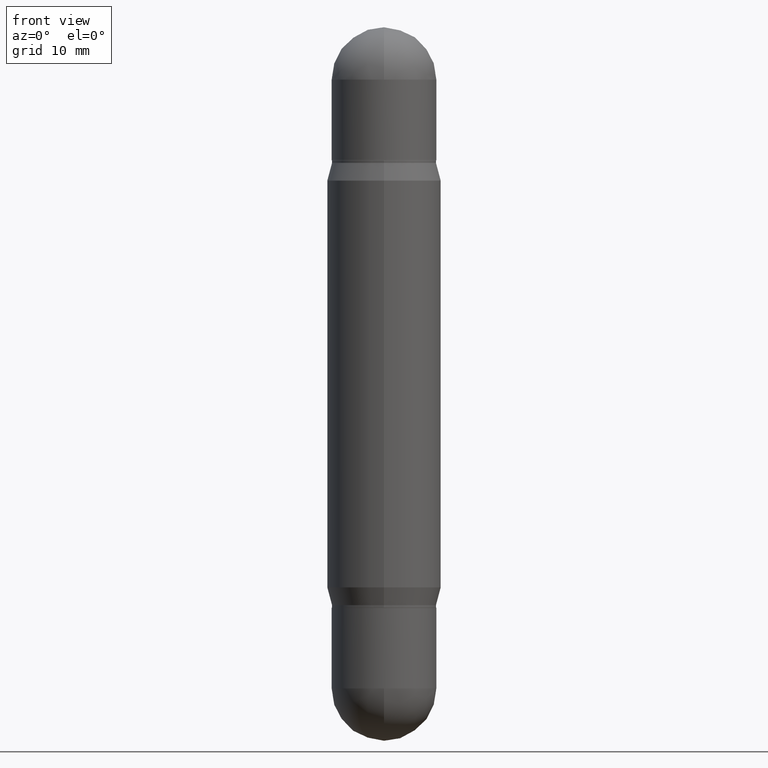
[diagram: clean part render]
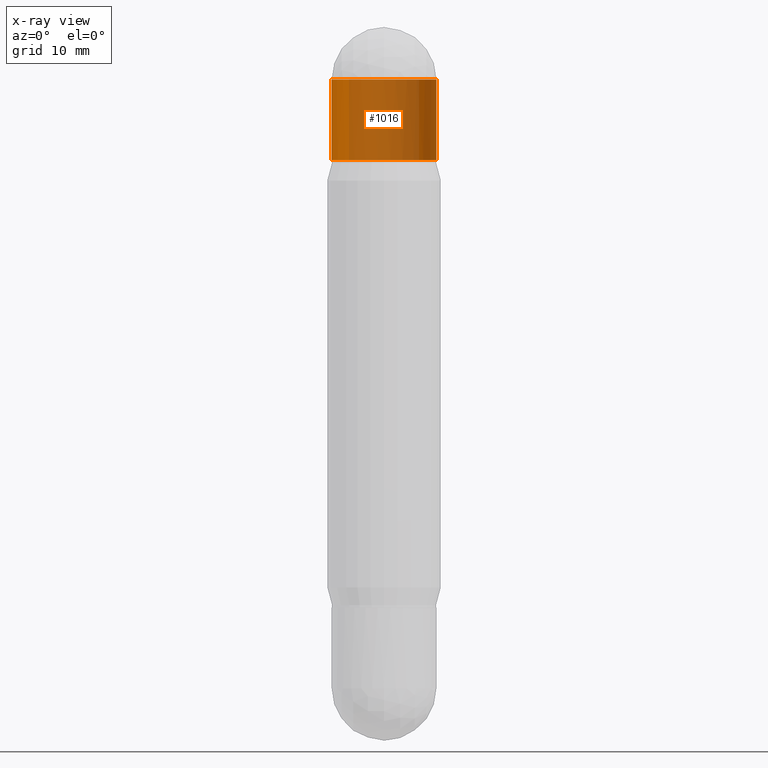
[diagram: x-ray — body ghosted, one internal face saturated and labeled with its STEP entity id]
A machine part, front view, then the same camera in x-ray: the body is ghosted and one INTERNAL B-rep face — a face not visible from any outside direction — is saturated and labeled: STEP entity #1016.
In plain terms, the highlighted cylindrical surface (partial cylindrical patch) has radius 5.5004 mm, axis along (-0, -0, -1).
Its self-contained STEP definition (entity closure, byte-faithful):
#64 = DIRECTION ( 'NONE',  ( -2.445468806185136877E-29, -3.479614466977828648E-15, -1.000000000000000000 ) ) ;
#98 = AXIS2_PLACEMENT_3D ( 'NONE', #621, #951, #774 ) ;
#107 = EDGE_CURVE ( 'NONE', #128, #830, #599, .T. ) ;
#115 = AXIS2_PLACEMENT_3D ( 'NONE', #148, #581, #235 ) ;
#128 = VERTEX_POINT ( 'NONE', #446 ) ;
#148 = CARTESIAN_POINT ( 'NONE',  ( 6.691414020924079206E-29, -7.710307624460063053E-16, -0.2165500000000001868 ) ) ;
#167 = DIRECTION ( 'NONE',  ( 1.000000000000000000, -6.982962677686266711E-15, 0.000000000000000000 ) ) ;
#235 = DIRECTION ( 'NONE',  ( 1.000000000000000000, -6.982962677686265922E-15, 0.000000000000000000 ) ) ;
#252 = DIRECTION ( 'NONE',  ( 2.445468806185136597E-29, 3.479614466977828254E-15, 1.000000000000000000 ) ) ;
#261 = AXIS2_PLACEMENT_3D ( 'NONE', #338, #252, #167 ) ;
#269 = FACE_OUTER_BOUND ( 'NONE', #609, .T. ) ;
#278 = CYLINDRICAL_SURFACE ( 'NONE', #98, 0.2165500000000001035 ) ;
#279 = EDGE_CURVE ( 'NONE', #799, #128, #566, .T. ) ;
#298 = VERTEX_POINT ( 'NONE', #633 ) ;
#338 = CARTESIAN_POINT ( 'NONE',  ( 5.873037884934223228E-29, -1.935483743820134825E-15, -0.5512000000000001343 ) ) ;
#369 = CIRCLE ( 'NONE', #115, 0.2165500000000001035 ) ;
#399 = DIRECTION ( 'NONE',  ( -2.445468806185136877E-29, -3.479614466977828648E-15, -1.000000000000000000 ) ) ;
#446 = CARTESIAN_POINT ( 'NONE',  ( 0.2165500000000000758, -3.447644311673096437E-15, -0.5512000000000001343 ) ) ;
#470 = EDGE_CURVE ( 'NONE', #799, #685, #765, .T. ) ;
#513 = EDGE_CURVE ( 'NONE', #685, #298, #369, .T. ) ;
#522 = EDGE_CURVE ( 'NONE', #298, #830, #576, .T. ) ;
#548 = ORIENTED_EDGE ( 'NONE', *, *, #279, .T. ) ;
#566 = LINE ( 'NONE', #988, #1089 ) ;
#576 = LINE ( 'NONE', #925, #1090 ) ;
#581 = DIRECTION ( 'NONE',  ( 2.445468806185136597E-29, 3.479614466977828254E-15, 1.000000000000000000 ) ) ;
#599 = CIRCLE ( 'NONE', #261, 0.2165500000000000758 ) ;
#609 = EDGE_LOOP ( 'NONE', ( #618, #954, #1067, #548, #910 ) ) ;
#618 = ORIENTED_EDGE ( 'NONE', *, *, #522, .F. ) ;
#621 = CARTESIAN_POINT ( 'NONE',  ( 0.000000000000000000, -1.029212584771408642E-14, -2.952799999999999869 ) ) ;
#633 = CARTESIAN_POINT ( 'NONE',  ( -0.2165500000000001035, 1.323835882843576813E-16, -0.2165500000000001868 ) ) ;
#679 = CARTESIAN_POINT ( 'NONE',  ( 6.691414020924079206E-29, -7.710307624460063053E-16, -0.2165500000000001868 ) ) ;
#685 = VERTEX_POINT ( 'NONE', #956 ) ;
#765 = CIRCLE ( 'NONE', #904, 0.2165500000000001035 ) ;
#771 = DIRECTION ( 'NONE',  ( 2.445468806185136597E-29, 3.479614466977828254E-15, 1.000000000000000000 ) ) ;
#774 = DIRECTION ( 'NONE',  ( 1.000000000000000000, -6.982962677686270655E-15, 0.000000000000000000 ) ) ;
#799 = VERTEX_POINT ( 'NONE', #1081 ) ;
#830 = VERTEX_POINT ( 'NONE', #912 ) ;
#837 = DIRECTION ( 'NONE',  ( 1.000000000000000000, -6.982962677686265922E-15, 0.000000000000000000 ) ) ;
#904 = AXIS2_PLACEMENT_3D ( 'NONE', #679, #771, #837 ) ;
#910 = ORIENTED_EDGE ( 'NONE', *, *, #107, .T. ) ;
#912 = CARTESIAN_POINT ( 'NONE',  ( -0.2165500000000000758, 1.323835882843561036E-16, -0.5512000000000001343 ) ) ;
#925 = CARTESIAN_POINT ( 'NONE',  ( -0.2165500000000001035, -8.806485006296660292E-15, -2.952799999999999869 ) ) ;
#951 = DIRECTION ( 'NONE',  ( -2.445468806185136597E-29, -3.479614466977828254E-15, -1.000000000000000000 ) ) ;
#954 = ORIENTED_EDGE ( 'NONE', *, *, #513, .F. ) ;
#956 = CARTESIAN_POINT ( 'NONE',  ( 1.512160567853029651E-15, 0.2165499999999994929, -0.2165500000000009362 ) ) ;
#988 = CARTESIAN_POINT ( 'NONE',  ( 0.2165500000000001035, -1.180428641556704882E-14, -2.952799999999999869 ) ) ;
#1016 = ADVANCED_FACE ( 'NONE', ( #269 ), #278, .T. ) ;
#1067 = ORIENTED_EDGE ( 'NONE', *, *, #470, .F. ) ;
#1081 = CARTESIAN_POINT ( 'NONE',  ( 0.2165500000000001035, -2.865417820986029909E-15, -0.2165500000000001868 ) ) ;
#1089 = VECTOR ( 'NONE', #399, 39.37007874015748143 ) ;
#1090 = VECTOR ( 'NONE', #64, 39.37007874015748143 ) ;